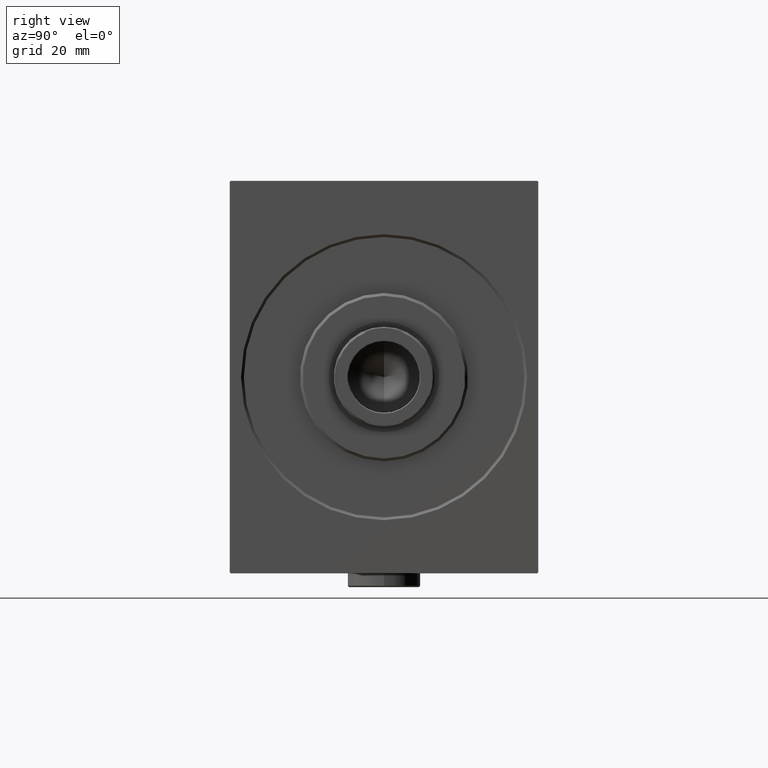
[diagram: clean part render]
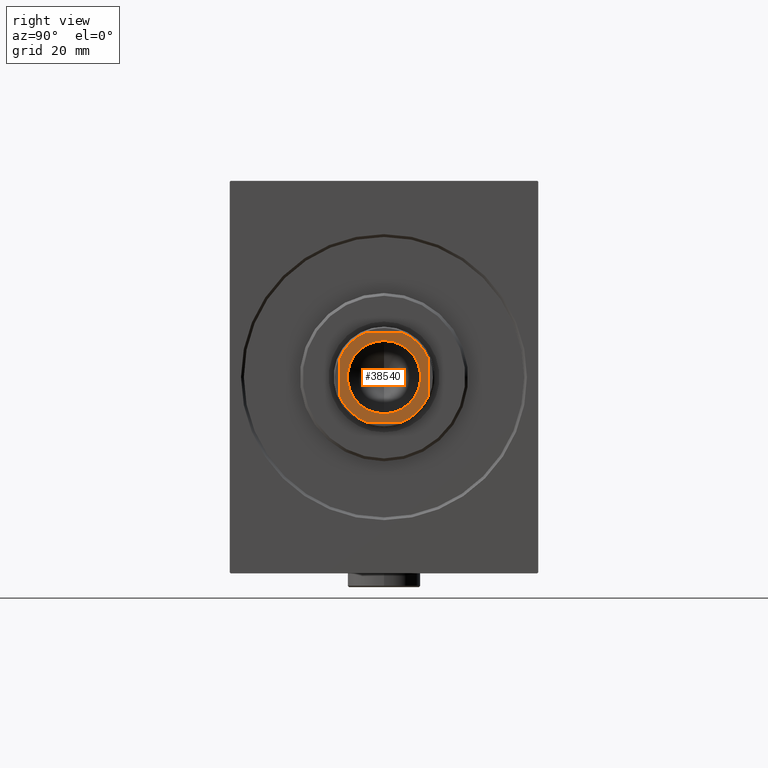
[diagram: same view with one face highlighted and labeled with its STEP entity id]
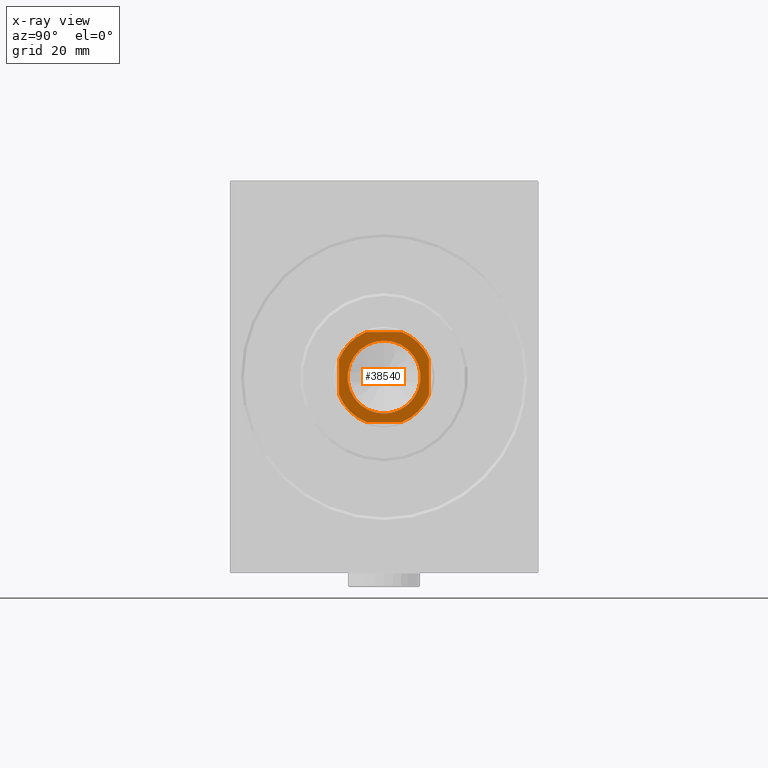
[diagram: x-ray of the same camera — body ghosted, the highlighted face saturated]
A machine part, right view. The second image highlights one B-rep face of the part: STEP entity #38540.
The next image is the same camera in x-ray: the body ghosted, the highlighted face saturated — about 0% of this face is hidden behind the body in this view.
In plain terms, the highlighted planar face has unit normal (1, 0, -0).
Its self-contained STEP definition (entity closure, byte-faithful):
#313 = EDGE_CURVE ( 'NONE', #27115, #23202, #13372, .T. ) ;
#438 = ORIENTED_EDGE ( 'NONE', *, *, #3067, .T. ) ;
#2199 = CARTESIAN_POINT ( 'NONE',  ( 16.00000000000000355, -6.311893535223781271, 166.0000000000000000 ) ) ;
#2752 = VERTEX_POINT ( 'NONE', #41971 ) ;
#3049 = DIRECTION ( 'NONE',  ( -0.000000000000000000, 0.000000000000000000, 1.000000000000000000 ) ) ;
#3067 = EDGE_CURVE ( 'NONE', #41217, #28873, #21302, .T. ) ;
#4239 = DIRECTION ( 'NONE',  ( -0.000000000000000000, 0.000000000000000000, 1.000000000000000000 ) ) ;
#5600 = FACE_BOUND ( 'NONE', #11610, .T. ) ;
#6134 = VERTEX_POINT ( 'NONE', #41581 ) ;
#7535 = VECTOR ( 'NONE', #38568, 1000.000000000000000 ) ;
#7716 = VERTEX_POINT ( 'NONE', #18028 ) ;
#8128 = VECTOR ( 'NONE', #38700, 1000.000000000000000 ) ;
#8236 = EDGE_CURVE ( 'NONE', #23202, #41217, #33515, .T. ) ;
#8551 = ORIENTED_EDGE ( 'NONE', *, *, #12482, .T. ) ;
#9936 = DIRECTION ( 'NONE',  ( -0.000000000000000000, 0.000000000000000000, 1.000000000000000000 ) ) ;
#10255 = CIRCLE ( 'NONE', #43227, 17.20000000000005613 ) ;
#11108 = CIRCLE ( 'NONE', #27590, 13.04999999999997762 ) ;
#11446 = DIRECTION ( 'NONE',  ( 1.000000000000000000, 0.000000000000000000, 0.000000000000000000 ) ) ;
#11566 = DIRECTION ( 'NONE',  ( 0.000000000000000000, -0.000000000000000000, -1.000000000000000000 ) ) ;
#11610 = EDGE_LOOP ( 'NONE', ( #34383, #21761 ) ) ;
#12342 = PLANE ( 'NONE',  #44175 ) ;
#12482 = EDGE_CURVE ( 'NONE', #44078, #6134, #18049, .T. ) ;
#13372 = LINE ( 'NONE', #33557, #33328 ) ;
#13812 = CARTESIAN_POINT ( 'NONE',  ( 16.00000000000000000, 6.311893535224001539, 166.0000000000000000 ) ) ;
#14744 = CARTESIAN_POINT ( 'NONE',  ( -15.99999999999999645, -6.311893535223964236, 166.0000000000000000 ) ) ;
#14785 = CARTESIAN_POINT ( 'NONE',  ( 16.00000000000000000, 16.00000000000000000, 166.0000000000000000 ) ) ;
#15081 = EDGE_LOOP ( 'NONE', ( #438, #35430, #8551, #39353, #17391, #26480, #30023, #44357 ) ) ;
#16362 = CARTESIAN_POINT ( 'NONE',  ( -15.99999999999999645, 6.311893535223870977, 166.0000000000000000 ) ) ;
#17391 = ORIENTED_EDGE ( 'NONE', *, *, #29990, .T. ) ;
#18028 = CARTESIAN_POINT ( 'NONE',  ( 13.04999999999997762, 0.000000000000000000, 166.0000000000000000 ) ) ;
#18049 = LINE ( 'NONE', #28587, #29324 ) ;
#18072 = EDGE_CURVE ( 'NONE', #6134, #43001, #40308, .T. ) ;
#18366 = DIRECTION ( 'NONE',  ( 1.000000000000000000, 0.000000000000000000, 0.000000000000000000 ) ) ;
#19578 = DIRECTION ( 'NONE',  ( 1.000000000000000000, 0.000000000000000000, 0.000000000000000000 ) ) ;
#19914 = AXIS2_PLACEMENT_3D ( 'NONE', #28907, #22419, #18366 ) ;
#21302 = LINE ( 'NONE', #14785, #7535 ) ;
#21761 = ORIENTED_EDGE ( 'NONE', *, *, #34386, .T. ) ;
#22233 = CARTESIAN_POINT ( 'NONE',  ( 6.311893535223781271, -16.00000000000000000, 166.0000000000000000 ) ) ;
#22419 = DIRECTION ( 'NONE',  ( -0.000000000000000000, 0.000000000000000000, 1.000000000000000000 ) ) ;
#22597 = DIRECTION ( 'NONE',  ( 1.000000000000000000, 0.000000000000000000, 0.000000000000000000 ) ) ;
#23202 = VERTEX_POINT ( 'NONE', #22233 ) ;
#24351 = LINE ( 'NONE', #31075, #8128 ) ;
#24759 = EDGE_CURVE ( 'NONE', #7716, #2752, #43710, .T. ) ;
#25884 = CARTESIAN_POINT ( 'NONE',  ( -6.311893535223952689, -16.00000000000000000, 166.0000000000000000 ) ) ;
#26409 = DIRECTION ( 'NONE',  ( 1.000000000000000000, 0.000000000000000000, 0.000000000000000000 ) ) ;
#26440 = EDGE_CURVE ( 'NONE', #28873, #44078, #29444, .T. ) ;
#26480 = ORIENTED_EDGE ( 'NONE', *, *, #28389, .T. ) ;
#27115 = VERTEX_POINT ( 'NONE', #25884 ) ;
#27590 = AXIS2_PLACEMENT_3D ( 'NONE', #35107, #11566, #28603 ) ;
#28389 = EDGE_CURVE ( 'NONE', #32864, #27115, #10255, .T. ) ;
#28412 = CARTESIAN_POINT ( 'NONE',  ( 0.000000000000000000, 0.000000000000000000, 166.0000000000000000 ) ) ;
#28587 = CARTESIAN_POINT ( 'NONE',  ( -16.00000000000000000, 16.00000000000000000, 166.0000000000000000 ) ) ;
#28603 = DIRECTION ( 'NONE',  ( 1.000000000000000000, 0.000000000000000000, 0.000000000000000000 ) ) ;
#28641 = DIRECTION ( 'NONE',  ( 0.000000000000000000, -0.000000000000000000, -1.000000000000000000 ) ) ;
#28873 = VERTEX_POINT ( 'NONE', #13812 ) ;
#28907 = CARTESIAN_POINT ( 'NONE',  ( 0.000000000000000000, 0.000000000000000000, 166.0000000000000000 ) ) ;
#29324 = VECTOR ( 'NONE', #31721, 1000.000000000000000 ) ;
#29444 = CIRCLE ( 'NONE', #33731, 17.20000000000007390 ) ;
#29593 = CARTESIAN_POINT ( 'NONE',  ( 0.000000000000000000, 0.000000000000000000, 166.0000000000000000 ) ) ;
#29990 = EDGE_CURVE ( 'NONE', #43001, #32864, #24351, .T. ) ;
#30023 = ORIENTED_EDGE ( 'NONE', *, *, #313, .T. ) ;
#30336 = CARTESIAN_POINT ( 'NONE',  ( 0.000000000000000000, 0.000000000000000000, 166.0000000000000000 ) ) ;
#30840 = AXIS2_PLACEMENT_3D ( 'NONE', #28412, #28641, #22597 ) ;
#31075 = CARTESIAN_POINT ( 'NONE',  ( -16.00000000000000000, 16.00000000000000000, 166.0000000000000000 ) ) ;
#31721 = DIRECTION ( 'NONE',  ( -1.000000000000000000, -0.000000000000000000, -0.000000000000000000 ) ) ;
#32400 = AXIS2_PLACEMENT_3D ( 'NONE', #33581, #3049, #26409 ) ;
#32864 = VERTEX_POINT ( 'NONE', #14744 ) ;
#33328 = VECTOR ( 'NONE', #44298, 1000.000000000000000 ) ;
#33515 = CIRCLE ( 'NONE', #19914, 17.19999999999999218 ) ;
#33557 = CARTESIAN_POINT ( 'NONE',  ( -15.99999999999999289, -16.00000000000000000, 166.0000000000000000 ) ) ;
#33581 = CARTESIAN_POINT ( 'NONE',  ( 0.000000000000000000, 0.000000000000000000, 166.0000000000000000 ) ) ;
#33731 = AXIS2_PLACEMENT_3D ( 'NONE', #30336, #9936, #19578 ) ;
#34305 = CARTESIAN_POINT ( 'NONE',  ( 6.311893535223999763, 16.00000000000000000, 166.0000000000000000 ) ) ;
#34383 = ORIENTED_EDGE ( 'NONE', *, *, #24759, .T. ) ;
#34386 = EDGE_CURVE ( 'NONE', #2752, #7716, #11108, .T. ) ;
#34980 = CARTESIAN_POINT ( 'NONE',  ( 0.000000000000000000, 0.000000000000000000, 166.0000000000000000 ) ) ;
#35107 = CARTESIAN_POINT ( 'NONE',  ( 0.000000000000000000, 0.000000000000000000, 166.0000000000000000 ) ) ;
#35430 = ORIENTED_EDGE ( 'NONE', *, *, #26440, .T. ) ;
#38540 = ADVANCED_FACE ( 'NONE', ( #5600, #42606 ), #12342, .T. ) ;
#38568 = DIRECTION ( 'NONE',  ( -1.084202172485504434E-16, 1.000000000000000000, -0.000000000000000000 ) ) ;
#38573 = DIRECTION ( 'NONE',  ( 1.000000000000000000, 0.000000000000000000, 0.000000000000000000 ) ) ;
#38700 = DIRECTION ( 'NONE',  ( 2.168404344971008868E-16, -1.000000000000000000, 0.000000000000000000 ) ) ;
#39353 = ORIENTED_EDGE ( 'NONE', *, *, #18072, .T. ) ;
#39696 = DIRECTION ( 'NONE',  ( -0.000000000000000000, 0.000000000000000000, 1.000000000000000000 ) ) ;
#40308 = CIRCLE ( 'NONE', #32400, 17.20000000000002416 ) ;
#41217 = VERTEX_POINT ( 'NONE', #2199 ) ;
#41581 = CARTESIAN_POINT ( 'NONE',  ( -6.311893535223866536, 16.00000000000000000, 166.0000000000000000 ) ) ;
#41971 = CARTESIAN_POINT ( 'NONE',  ( -13.04999999999997762, 1.598164072887293210E-15, 166.0000000000000000 ) ) ;
#42606 = FACE_OUTER_BOUND ( 'NONE', #15081, .T. ) ;
#43001 = VERTEX_POINT ( 'NONE', #16362 ) ;
#43227 = AXIS2_PLACEMENT_3D ( 'NONE', #34980, #4239, #38573 ) ;
#43710 = CIRCLE ( 'NONE', #30840, 13.04999999999997762 ) ;
#44078 = VERTEX_POINT ( 'NONE', #34305 ) ;
#44175 = AXIS2_PLACEMENT_3D ( 'NONE', #29593, #39696, #11446 ) ;
#44298 = DIRECTION ( 'NONE',  ( 1.000000000000000000, 0.000000000000000000, 0.000000000000000000 ) ) ;
#44357 = ORIENTED_EDGE ( 'NONE', *, *, #8236, .T. ) ;